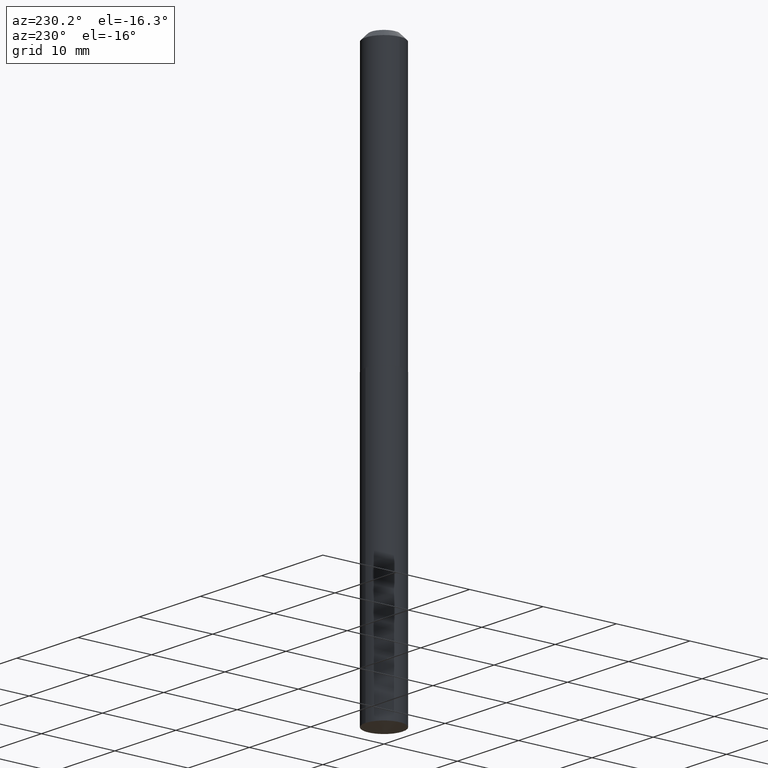
[diagram: clean part render]
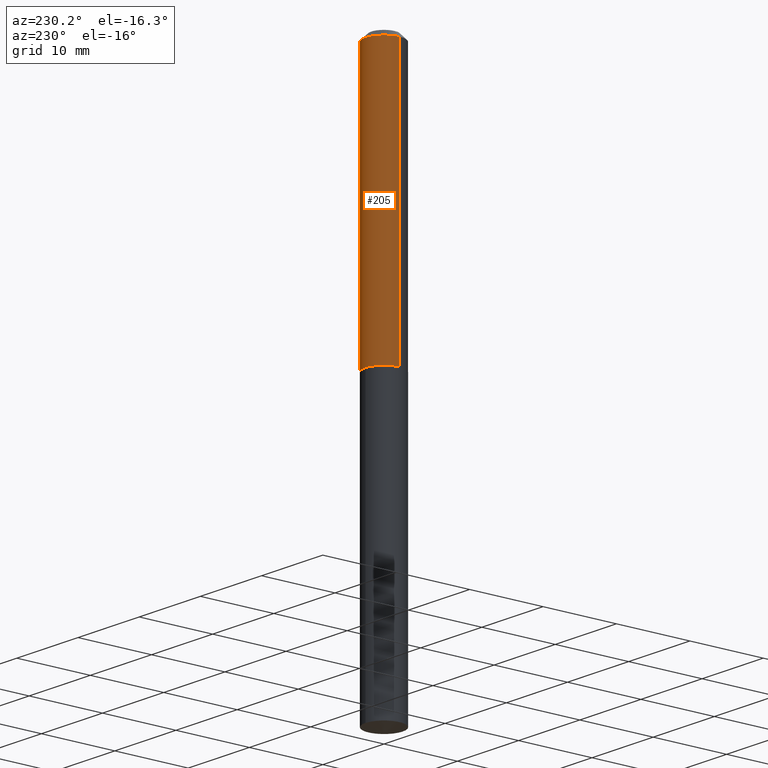
[diagram: same view with one face highlighted and labeled with its STEP entity id]
A machine part, auxiliary view. The second image highlights one B-rep face of the part: STEP entity #205.
In plain terms, the highlighted cylindrical surface (edge-blend (fillet) strip) has radius 2.5273 mm, axis along (-0, 0, 1).
Its self-contained STEP definition (entity closure, byte-faithful):
#3 = ORIENTED_EDGE ( 'NONE', *, *, #155, .T. ) ;
#10 = CARTESIAN_POINT ( 'NONE',  ( -0.09950000000000000511, -1.876269733495272342E-15, -0.03125000000000019429 ) ) ;
#11 = CIRCLE ( 'NONE', #59, 0.09950000000000015776 ) ;
#14 = DIRECTION ( 'NONE',  ( 1.000000000000000000, -6.982962677686266711E-15, 0.000000000000000000 ) ) ;
#21 = VERTEX_POINT ( 'NONE', #179 ) ;
#31 = CARTESIAN_POINT ( 'NONE',  ( 3.542261565759171006E-29, -5.057410719314297787E-15, -1.448500000000000343 ) ) ;
#32 = VECTOR ( 'NONE', #377, 39.37007874015748143 ) ;
#39 = CIRCLE ( 'NONE', #337, 0.09950000000000000511 ) ;
#52 = CARTESIAN_POINT ( 'NONE',  ( 0.000000000000000000, 0.000000000000000000, 0.000000000000000000 ) ) ;
#59 = AXIS2_PLACEMENT_3D ( 'NONE', #31, #365, #363 ) ;
#78 = CARTESIAN_POINT ( 'NONE',  ( -0.09950000000000008837, 7.069900220813003129E-16, -4.894340414803635936E-30 ) ) ;
#79 = ORIENTED_EDGE ( 'NONE', *, *, #191, .F. ) ;
#101 = DIRECTION ( 'NONE',  ( -2.445468806185136597E-29, 3.491481338843145583E-15, 1.000000000000000000 ) ) ;
#127 = EDGE_LOOP ( 'NONE', ( #182, #3, #79, #206 ) ) ;
#128 = EDGE_CURVE ( 'NONE', #216, #21, #356, .T. ) ;
#147 = FACE_OUTER_BOUND ( 'NONE', #127, .T. ) ;
#155 = EDGE_CURVE ( 'NONE', #351, #272, #204, .T. ) ;
#179 = CARTESIAN_POINT ( 'NONE',  ( 0.09950000000000000511, -8.039135782686324687E-16, -0.03125000000000019429 ) ) ;
#181 = DIRECTION ( 'NONE',  ( 1.000000000000000000, -6.982962677686266711E-15, 4.876176775795936353E-29 ) ) ;
#182 = ORIENTED_EDGE ( 'NONE', *, *, #306, .T. ) ;
#191 = EDGE_CURVE ( 'NONE', #21, #272, #39, .T. ) ;
#195 = CARTESIAN_POINT ( 'NONE',  ( -0.09950000000000015776, -4.350420697232997869E-15, -1.448500000000000343 ) ) ;
#203 = CARTESIAN_POINT ( 'NONE',  ( 7.642090019328598283E-31, -1.091087918388489651E-16, -0.03125000000000019429 ) ) ;
#204 = LINE ( 'NONE', #78, #280 ) ;
#205 = ADVANCED_FACE ( 'NONE', ( #147 ), #327, .T. ) ;
#206 = ORIENTED_EDGE ( 'NONE', *, *, #128, .F. ) ;
#216 = VERTEX_POINT ( 'NONE', #335 ) ;
#217 = AXIS2_PLACEMENT_3D ( 'NONE', #52, #101, #181 ) ;
#256 = CARTESIAN_POINT ( 'NONE',  ( 0.09950000000000008837, -6.948047864297841570E-16, 4.851795891916960794E-30 ) ) ;
#272 = VERTEX_POINT ( 'NONE', #10 ) ;
#280 = VECTOR ( 'NONE', #293, 39.37007874015748143 ) ;
#293 = DIRECTION ( 'NONE',  ( -2.445468806185136877E-29, 3.491481338843145188E-15, 1.000000000000000000 ) ) ;
#306 = EDGE_CURVE ( 'NONE', #216, #351, #11, .T. ) ;
#327 = CYLINDRICAL_SURFACE ( 'NONE', #217, 0.09950000000000008837 ) ;
#335 = CARTESIAN_POINT ( 'NONE',  ( 0.09950000000000015776, -5.752215505744083029E-15, -1.448500000000000343 ) ) ;
#337 = AXIS2_PLACEMENT_3D ( 'NONE', #203, #386, #14 ) ;
#351 = VERTEX_POINT ( 'NONE', #195 ) ;
#356 = LINE ( 'NONE', #256, #32 ) ;
#363 = DIRECTION ( 'NONE',  ( 1.000000000000000000, -6.982962677686267499E-15, 0.000000000000000000 ) ) ;
#365 = DIRECTION ( 'NONE',  ( -2.445468806185136597E-29, 3.491481338843145583E-15, 1.000000000000000000 ) ) ;
#377 = DIRECTION ( 'NONE',  ( -2.445468806185136877E-29, 3.491481338843145188E-15, 1.000000000000000000 ) ) ;
#386 = DIRECTION ( 'NONE',  ( -2.445468806185136597E-29, 3.491481338843145583E-15, 1.000000000000000000 ) ) ;